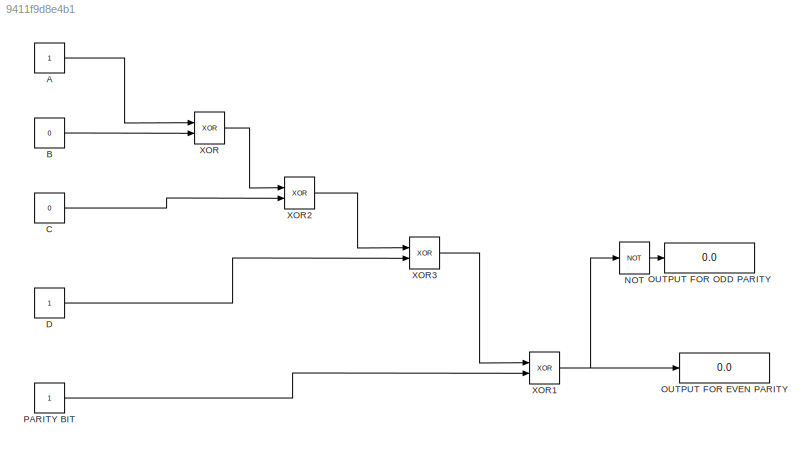
MODEL slx_9411f9d8e4b1
KIND model
CONFIG AbsTol = auto
CONFIG EnableMultiTasking = off
CONFIG FixedStep = auto
CONFIG MaxStep = auto
CONFIG MinStep = auto
CONFIG RelTol = 1e-3
CONFIG SampleTimeConstraint = Unconstrained
CONFIG SolverName = VariableStepAuto
CONFIG StartTime = 0.0
CONFIG StopTime = 10.0
BLOCK [Constant] A
BLOCK [Constant] B
  Value = 0
BLOCK [Constant] C
  Value = 0
BLOCK [Constant] D
BLOCK [Logic] NOT
  AllPortsSameDT = off
  IconShape = distinctive
  Operator = NOT
  OutDataTypeStr = boolean
  Ports = [1, 1]
BLOCK [Display] OUTPUT FOR EVEN PARITY
  Decimation = 1
  Ports = [1]
BLOCK [Display] OUTPUT FOR ODD PARITY
  Decimation = 1
  Ports = [1]
BLOCK [Constant] PARITY BIT
BLOCK [Logic] XOR
  AllPortsSameDT = off
  IconShape = distinctive
  Operator = XOR
  OutDataTypeStr = boolean
  Ports = [2, 1]
BLOCK [Logic] XOR1
  AllPortsSameDT = off
  IconShape = distinctive
  Operator = XOR
  OutDataTypeStr = boolean
  Ports = [2, 1]
BLOCK [Logic] XOR2
  AllPortsSameDT = off
  IconShape = distinctive
  Operator = XOR
  OutDataTypeStr = boolean
  Ports = [2, 1]
BLOCK [Logic] XOR3
  AllPortsSameDT = off
  IconShape = distinctive
  Operator = XOR
  OutDataTypeStr = boolean
  Ports = [2, 1]
LINE A:1 -> XOR:1
LINE B:1 -> XOR:2
LINE C:1 -> XOR2:2
LINE D:1 -> XOR3:2
LINE NOT:1 -> OUTPUT FOR ODD PARITY:1
LINE PARITY BIT:1 -> XOR1:2
NET XOR1:1 -> NOT:1, OUTPUT FOR EVEN PARITY:1
LINE XOR2:1 -> XOR3:1
LINE XOR3:1 -> XOR1:1
LINE XOR:1 -> XOR2:1
note: NET lines group one-source signal fan-out (src -> all destinations, sorted); 1:1 wires keep LINE
